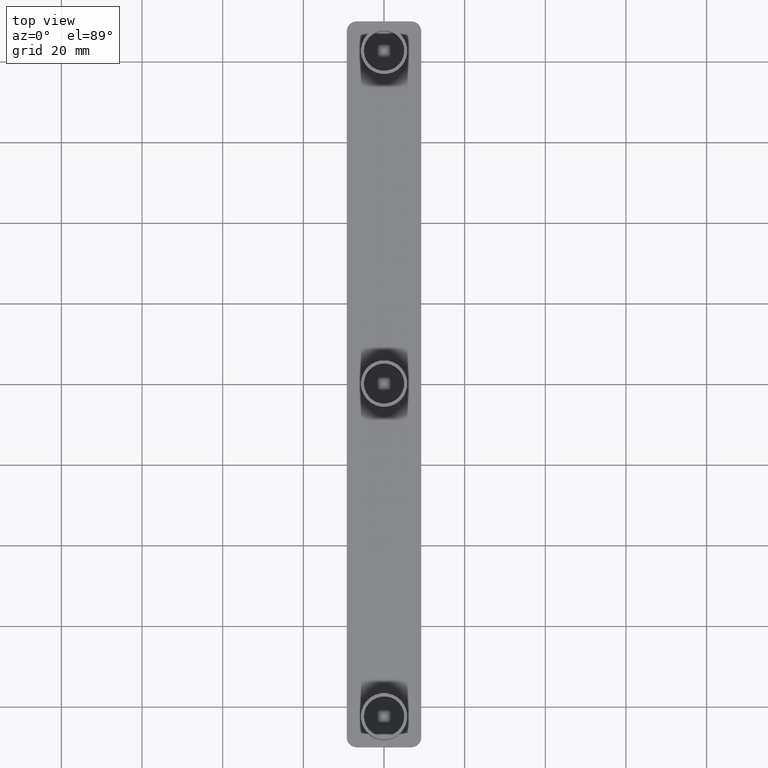
[diagram: clean part render]
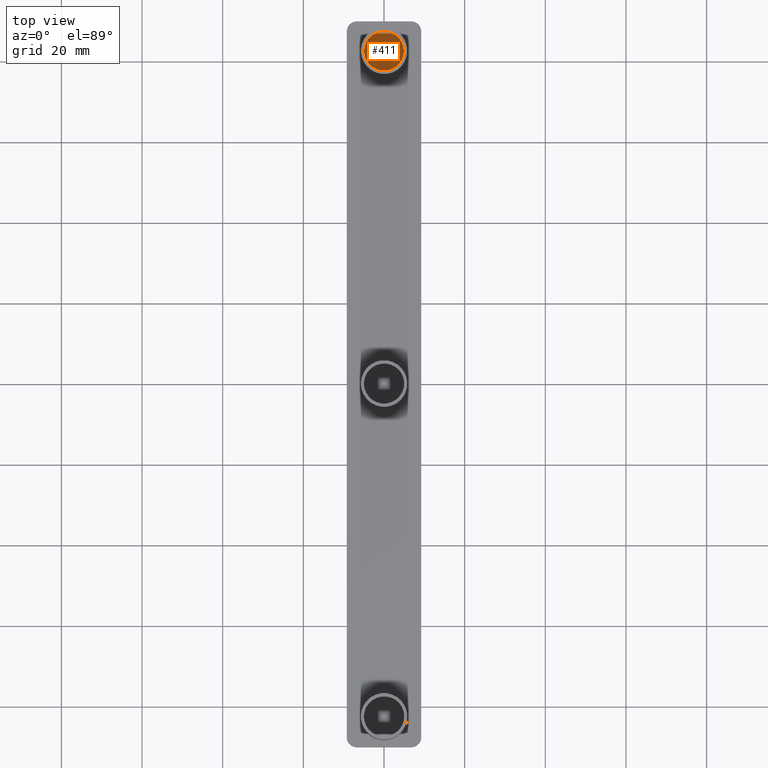
[diagram: same view with one face highlighted and labeled with its STEP entity id]
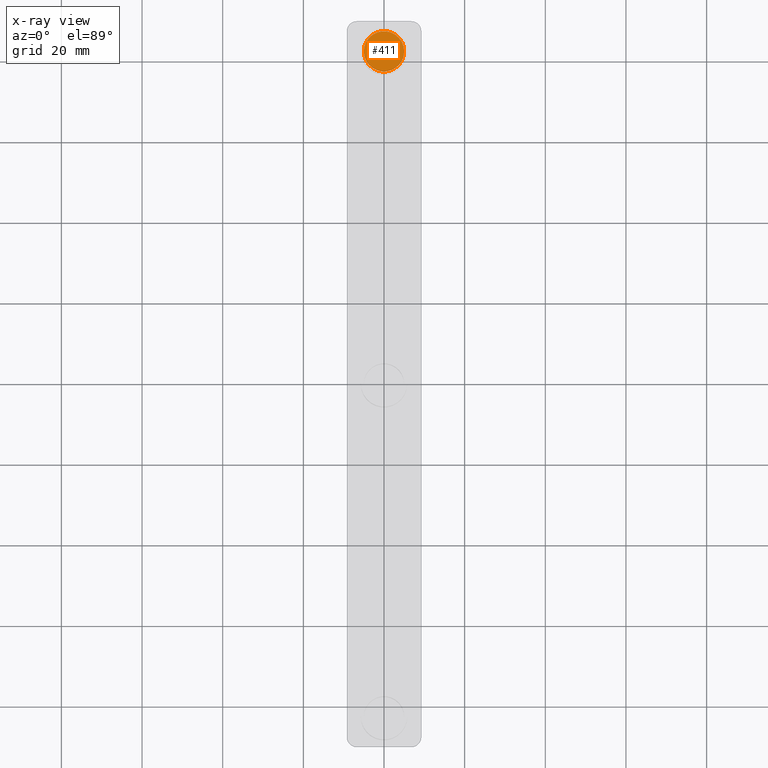
[diagram: x-ray of the same camera — body ghosted, the highlighted face saturated]
A machine part, top view. The second image highlights one B-rep face of the part: STEP entity #411.
The next image is the same camera in x-ray: the body ghosted, the highlighted face saturated — about 0% of this face is hidden behind the body in this view.
In plain terms, the highlighted planar face has unit normal (0, 0, 1).
Its self-contained STEP definition (entity closure, byte-faithful):
#386=CARTESIAN_POINT('',(-11.100049735977336,-107.999982235150130,0.0));
#387=DIRECTION('',(0.0,0.0,1.0));
#388=DIRECTION('',(1.0,0.0,0.0));
#389=AXIS2_PLACEMENT_3D('',#386,#387,#388);
#390=PLANE('',#389);
#391=CARTESIAN_POINT('',(-4.999999999980001,82.550022499670376,0.0));
#392=VERTEX_POINT('',#391);
#393=CARTESIAN_POINT('',(4.999999999979991,82.550022499670376,0.0));
#394=VERTEX_POINT('',#393);
#395=CARTESIAN_POINT('',(0.0,82.550022499670376,0.0));
#396=DIRECTION('',(0.0,0.0,-1.0));
#397=DIRECTION('',(1.0,0.0,0.0));
#398=AXIS2_PLACEMENT_3D('',#395,#396,#397);
#399=CIRCLE('',#398,4.999999999980001);
#400=EDGE_CURVE('',#392,#394,#399,.T.);
#401=ORIENTED_EDGE('',*,*,#400,.F.);
#402=CARTESIAN_POINT('',(0.0,82.550022499670376,0.0));
#403=DIRECTION('',(0.0,0.0,-1.0));
#404=DIRECTION('',(1.0,0.0,0.0));
#405=AXIS2_PLACEMENT_3D('',#402,#403,#404);
#406=CIRCLE('',#405,4.999999999980001);
#407=EDGE_CURVE('',#394,#392,#406,.T.);
#408=ORIENTED_EDGE('',*,*,#407,.F.);
#409=EDGE_LOOP('',(#401,#408));
#410=FACE_OUTER_BOUND('',#409,.T.);
#411=ADVANCED_FACE('',(#410),#390,.T.);